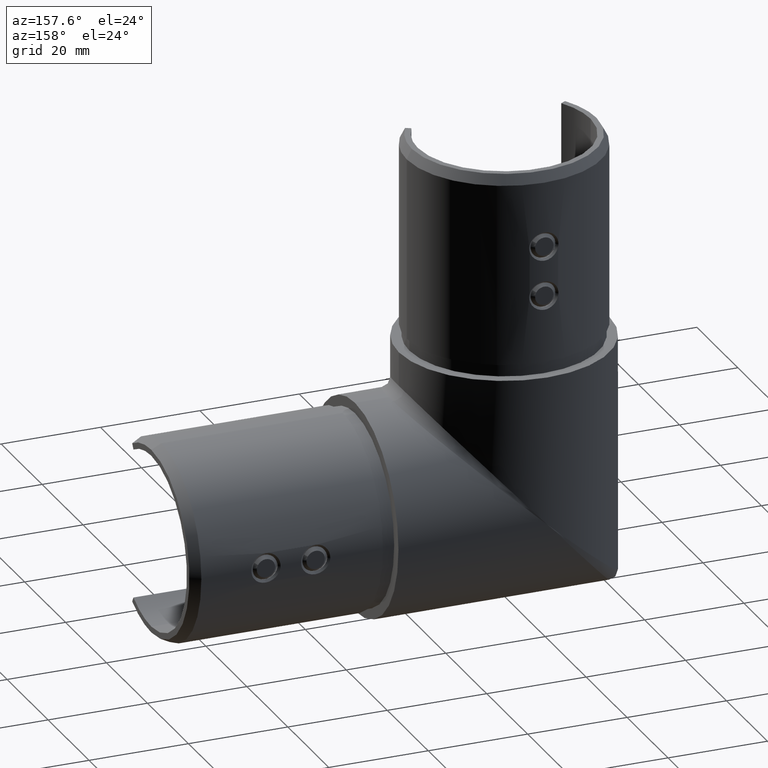
[diagram: clean part render]
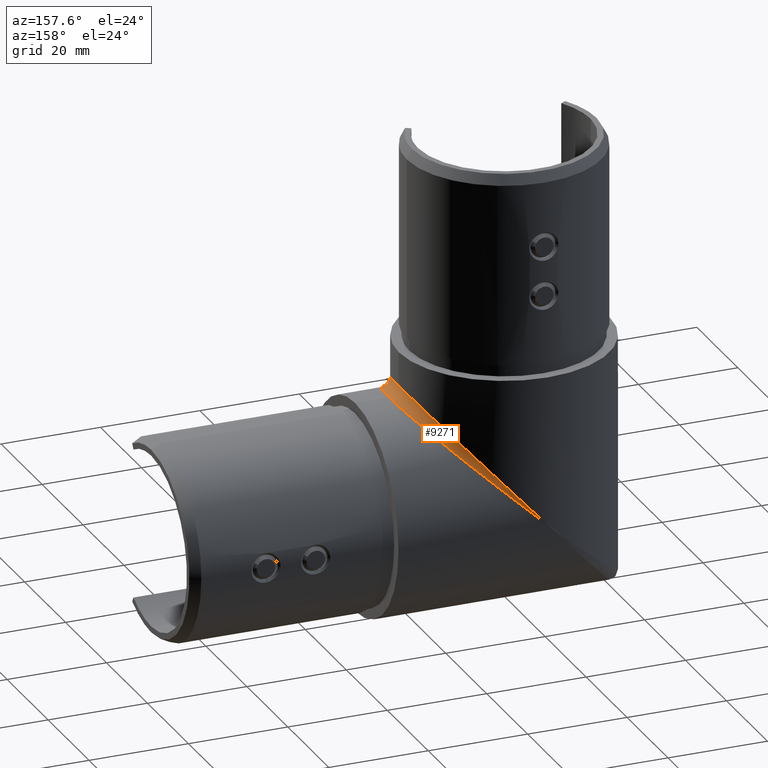
[diagram: same view with one face highlighted and labeled with its STEP entity id]
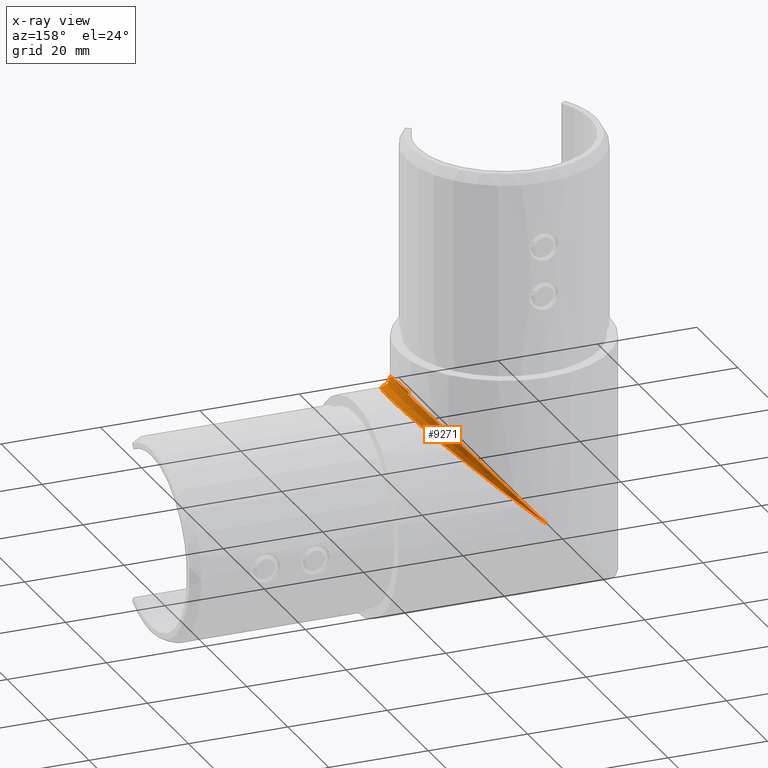
[diagram: x-ray of the same camera — body ghosted, the highlighted face saturated]
A machine part, auxiliary view. The second image highlights one B-rep face of the part: STEP entity #9271.
The next image is the same camera in x-ray: the body ghosted, the highlighted face saturated — about 2% of this face is hidden behind the body in this view.
In plain terms, the highlighted face is a freeform B-spline surface patch.
Its self-contained STEP definition (entity closure, byte-faithful):
#1090 = B_SPLINE_CURVE_WITH_KNOTS ( 'NONE', 3,
 ( #8121, #19038, #1847, #12596 ),
 .UNSPECIFIED., .F., .F.,
 ( 4, 4 ),
 ( 0.0000000000000000000, 0.001148280017814643900 ),
 .UNSPECIFIED. ) ;
#1227 = CARTESIAN_POINT ( 'NONE',  ( 17.51617754742680700, -12.02124343862689500, 17.51617754743204700 ) ) ;
#1295 = CARTESIAN_POINT ( 'NONE',  ( 21.12950048280429300, -2.070315881782744100, 23.12284958495651600 ) ) ;
#1432 = CARTESIAN_POINT ( 'NONE',  ( 23.23244799576600900, 0.2095884880941023800, 21.22965075475448100 ) ) ;
#1492 = CARTESIAN_POINT ( 'NONE',  ( 14.35071431729493200, -16.69658405602340800, 13.11358377270019700 ) ) ;
#1805 = VERTEX_POINT ( 'NONE', #17069 ) ;
#1807 = CARTESIAN_POINT ( 'NONE',  ( 12.74488384039687700, -17.47684181996279000, 11.99999999999999800 ) ) ;
#1847 = CARTESIAN_POINT ( 'NONE',  ( 12.00000000000000000, -17.47684181996274700, 12.74383663301167100 ) ) ;
#2256 = CARTESIAN_POINT ( 'NONE',  ( -4.261770861032789000E-015, 21.20000000000000300, -3.894376821288583500E-015 ) ) ;
#2298 = CARTESIAN_POINT ( 'NONE',  ( 2.282291699480177600, 21.20000000000000300, 2.497602237166986600 ) ) ;
#2670 = CARTESIAN_POINT ( 'NONE',  ( 17.62434800115397600, 13.83368088747022600, 16.10500765622567000 ) ) ;
#2749 = CARTESIAN_POINT ( 'NONE',  ( 17.73444640629554000, -11.67182115891006500, 19.40750738802206900 ) ) ;
#2790 = CARTESIAN_POINT ( 'NONE',  ( 17.87842104508794000, -13.44058325175394800, 19.56506453990755600 ) ) ;
#2816 = CARTESIAN_POINT ( 'NONE',  ( 22.64656377132545000, 4.742260090374634800, 20.69427379103901300 ) ) ;
#2858 = B_SPLINE_CURVE_WITH_KNOTS ( 'NONE', 3,
 ( #3108, #1807, #12758, #6258 ),
 .UNSPECIFIED., .F., .F.,
 ( 4, 4 ),
 ( 0.0000000000000000000, 0.001148417064566671300 ),
 .UNSPECIFIED. ) ;
#2887 = CARTESIAN_POINT ( 'NONE',  ( 13.11358377270153900, -16.69658405602223200, 14.35071431729629100 ) ) ;
#2926 = CARTESIAN_POINT ( 'NONE',  ( 12.00000000000000000, -17.47684181996278600, 13.13207547169811700 ) ) ;
#2947 = CARTESIAN_POINT ( 'NONE',  ( 18.68958751055159300, 10.07180803970899200, 20.45275614362367400 ) ) ;
#3004 = CARTESIAN_POINT ( 'NONE',  ( 20.97149788607050900, 3.287059136086488000, 20.97149788606617100 ) ) ;
#3099 = CARTESIAN_POINT ( 'NONE',  ( 23.19999999999999900, 2.596251214192388800E-015, 21.20000000000000300 ) ) ;
#3108 = CARTESIAN_POINT ( 'NONE',  ( 13.13207547169811600, -17.47684181996278600, 11.99999999999999600 ) ) ;
#3114 = CARTESIAN_POINT ( 'NONE',  ( 23.20000000000000300, 12.41867247769038600, 21.19999999999999900 ) ) ;
#3385 = CARTESIAN_POINT ( 'NONE',  ( 21.20000000000000300, 0.0000000000000000000, 23.20000000000001400 ) ) ;
#3642 = CARTESIAN_POINT ( 'NONE',  ( 12.41867247769038200, 21.19999999999999900, 13.59024535294419400 ) ) ;
#3771 = VERTEX_POINT ( 'NONE', #18510 ) ;
#4205 =( BOUNDED_SURFACE ( )  B_SPLINE_SURFACE ( 3, 2, ( 
 ( #2256, #4425, #16122 ),
 ( #15252, #10091, #2298 ),
 ( #19837, #8906, #19099 ),
 ( #12927, #19233, #7200 ),
 ( #8907, #14033, #16748 ),
 ( #17756, #19359, #13114 ),
 ( #8043, #9697, #5041 ),
 ( #17446, #8045, #16200 ),
 ( #14719, #15771, #7751 ),
 ( #2670, #7453, #18211 ),
 ( #15137, #13284, #14797 ),
 ( #11165, #16840, #20141 ),
 ( #12312, #13895, #2947 ),
 ( #4384, #5879, #6082 ),
 ( #4309, #15333, #9228 ),
 ( #2816, #7642, #18613 ),
 ( #20208, #3004, #10798 ),
 ( #15523, #15456, #16905 ),
 ( #1432, #15268, #17031 ),
 ( #12380, #7461, #1295 ),
 ( #13956, #7704, #5947 ),
 ( #4567, #9029, #12246 ),
 ( #18414, #9288, #6143 ),
 ( #7577, #10611, #17099 ),
 ( #4502, #18677, #20019 ),
 ( #20274, #12184, #2749 ),
 ( #7523, #1227, #13770 ),
 ( #18485, #9094, #4442 ),
 ( #18553, #10860, #20084 ),
 ( #1492, #10682, #2887 ),
 ( #13839, #10735, #13700 ),
 ( #15398, #6017, #16968 ) ),
 .UNSPECIFIED., .F., .F., .T. ) 
 B_SPLINE_SURFACE_WITH_KNOTS ( ( 4, 2, 2, 2, 2, 2, 2, 2, 2, 2, 2, 2, 2, 2, 2, 4 ),
 ( 3, 3 ),
 ( 4.712388980384689700, 5.035328081472264300, 5.196797632016052000, 5.358267182559838900, 5.519736733103626700, 5.681206283647414400, 5.842675834191201300, 6.004145384734989000, 6.165614935278776800, 6.327084485822563700, 6.488554036366351400, 6.650023586910139200, 6.811493137453926000, 6.972962687997713800, 7.134432238541501500, 7.295901789085288400 ),
 ( 0.0000000000000000000, 1.000000000000000000 ),
 .UNSPECIFIED. ) 
 GEOMETRIC_REPRESENTATION_ITEM ( )  RATIONAL_B_SPLINE_SURFACE ( (
 ( 1.000000000000000000, 1.000000000000000000, 1.000000000000000000),
 ( 1.000000000000000000, 1.000072010740913100, 1.000000000000000000),
 ( 1.000000000000000000, 0.9911182247621054300, 1.000000000000000000),
 ( 1.000000000000000000, 0.9661852087506736000, 1.000000000000000000),
 ( 1.000000000000000000, 0.9559746956700891900, 1.000000000000000000),
 ( 1.000000000000000000, 0.9324835975448552100, 1.000000000000000000),
 ( 1.000000000000000000, 0.9192024831362256600, 1.000000000000000000),
 ( 1.000000000000000000, 0.8906132073651018600, 1.000000000000000000),
 ( 1.000000000000000000, 0.8753050428358567500, 1.000000000000000000),
 ( 1.000000000000000000, 0.8440305613904325300, 1.000000000000000000),
 ( 1.000000000000000000, 0.8280661255861100400, 1.000000000000000000),
 ( 1.000000000000000000, 0.7971520532528172400, 1.000000000000000000),
 ( 1.000000000000000000, 0.7822085571078862800, 1.000000000000000000),
 ( 1.000000000000000000, 0.7552030753792203800, 1.000000000000000000),
 ( 1.000000000000000000, 0.7431535977148402400, 1.000000000000000000),
 ( 1.000000000000000000, 0.7237228427644169000, 1.000000000000000000),
 ( 1.000000000000000000, 0.7163580511837230900, 1.000000000000000000),
 ( 1.000000000000000000, 0.7075515103778218200, 1.000000000000000000),
 ( 1.000000000000000000, 0.7061203650306597800, 1.000000000000000000),
 ( 1.000000000000000000, 0.7094543594188130700, 1.000000000000000000),
 ( 1.000000000000000000, 0.7142152078109794700, 1.000000000000000000),
 ( 1.000000000000000000, 0.7291050561391768700, 1.000000000000000000),
 ( 1.000000000000000000, 0.7392187289664046100, 1.000000000000000000),
 ( 1.000000000000000000, 0.7632067814288314700, 1.000000000000000000),
 ( 1.000000000000000000, 0.7770660739100668800, 1.000000000000000000),
 ( 1.000000000000000000, 0.8066568742119812900, 1.000000000000000000),
 ( 1.000000000000000000, 0.8223794563346977800, 1.000000000000000000),
 ( 1.000000000000000000, 0.8539027480253704700, 1.000000000000000000),
 ( 1.000000000000000000, 0.8696999726028042900, 1.000000000000000000),
 ( 1.000000000000000000, 0.8998528429336456500, 1.000000000000000000),
 ( 1.000000000000000000, 0.9142129684335507100, 1.000000000000000000),
 ( 1.000000000000000000, 0.9272453680113736900, 1.000000000000000000) ) ) 
 REPRESENTATION_ITEM ( '' )  SURFACE ( )  );
#4243 =( BOUNDED_CURVE ( )  B_SPLINE_CURVE ( 3, ( #12167, #9080, #4369, #15256 ),
 .UNSPECIFIED., .F., .F. ) 
 B_SPLINE_CURVE_WITH_KNOTS ( ( 4, 4 ),
 ( 0.0000000000000000000, 0.9691048077543631400 ),
 .UNSPECIFIED. ) 
 CURVE ( )  GEOMETRIC_REPRESENTATION_ITEM ( )  RATIONAL_B_SPLINE_CURVE ( ( 1.000000000000000000, 0.9232556890245163800, 0.9232556890245163800, 1.000000000000000000 ) ) 
 REPRESENTATION_ITEM ( '' )  );
#4309 = CARTESIAN_POINT ( 'NONE',  ( 21.95869899313775900, 6.936092053620451600, 20.06570770062565100 ) ) ;
#4358 =( BOUNDED_CURVE ( )  B_SPLINE_CURVE ( 3, ( #2926, #2790, #18528, #9136 ),
 .UNSPECIFIED., .F., .T. ) 
 B_SPLINE_CURVE_WITH_KNOTS ( ( 4, 4 ),
 ( 5.314080499425223500, 6.283185307179586200 ),
 .UNSPECIFIED. ) 
 CURVE ( )  GEOMETRIC_REPRESENTATION_ITEM ( )  RATIONAL_B_SPLINE_CURVE ( ( 1.000000000000000000, 0.9232556890245163800, 0.9232556890245163800, 1.000000000000000000 ) ) 
 REPRESENTATION_ITEM ( '' )  );
#4369 = CARTESIAN_POINT ( 'NONE',  ( 19.56506453990755600, -13.44058325175394900, 17.87842104508794300 ) ) ;
#4384 = CARTESIAN_POINT ( 'NONE',  ( 21.51764656607554500, 8.007567067440087200, 19.66267703451795500 ) ) ;
#4425 = CARTESIAN_POINT ( 'NONE',  ( -4.078073841160686300E-015, 21.20000000000000300, -4.078073841160686300E-015 ) ) ;
#4442 = CARTESIAN_POINT ( 'NONE',  ( 15.62729349644612100, -14.37114109872116600, 17.10156646780677600 ) ) ;
#4501 = CARTESIAN_POINT ( 'NONE',  ( -3.894376821288583500E-015, 21.20000000000000600, -3.894376821288583500E-015 ) ) ;
#4502 = CARTESIAN_POINT ( 'NONE',  ( 20.66637614432221800, -9.700857170816792800, 18.88479199395010300 ) ) ;
#4567 = CARTESIAN_POINT ( 'NONE',  ( 22.45782722856860000, -5.440350144443984300, 20.52180763990027400 ) ) ;
#5041 = CARTESIAN_POINT ( 'NONE',  ( 11.84906834499791200, 17.61651435043469100, 12.96690498131848200 ) ) ;
#5279 = ORIENTED_EDGE ( 'NONE', *, *, #17191, .F. ) ;
#5879 = CARTESIAN_POINT ( 'NONE',  ( 19.90214272145811200, 7.415719023556735400, 19.90214272146051400 ) ) ;
#5947 = CARTESIAN_POINT ( 'NONE',  ( 20.98719268887431600, -3.206203602904822000, 22.96711652744899400 ) ) ;
#6017 = CARTESIAN_POINT ( 'NONE',  ( 11.66983366698567600, -17.70672064115054300, 11.66983366698567800 ) ) ;
#6082 = CARTESIAN_POINT ( 'NONE',  ( 19.66267703451837800, 8.007567067439177700, 21.51764656607554800 ) ) ;
#6143 = CARTESIAN_POINT ( 'NONE',  ( 20.19873565049639600, -6.538583686445311300, 22.10427674959905500 ) ) ;
#6258 = CARTESIAN_POINT ( 'NONE',  ( 12.00000000000000000, -17.66907117696080900, 11.99999999999999600 ) ) ;
#6617 = CARTESIAN_POINT ( 'NONE',  ( -3.894376821288583500E-015, 21.20000000000000600, -3.894376821288583500E-015 ) ) ;
#7200 = CARTESIAN_POINT ( 'NONE',  ( 7.809994912617422200, 19.74198515774084200, 8.546786885505529300 ) ) ;
#7453 = CARTESIAN_POINT ( 'NONE',  ( 16.57525732915306100, 13.28872988263180200, 16.57525732915306400 ) ) ;
#7461 = CARTESIAN_POINT ( 'NONE',  ( 21.14282143007824600, -1.874150454866784200, 21.14282143007609000 ) ) ;
#7523 = CARTESIAN_POINT ( 'NONE',  ( 18.69082287118923700, -12.61075492651513700, 17.07954503746507100 ) ) ;
#7577 = CARTESIAN_POINT ( 'NONE',  ( 21.20854614003712200, -8.668849251224731500, 19.38022319692995800 ) ) ;
#7580 =( BOUNDED_CURVE ( )  B_SPLINE_CURVE ( 3, ( #3385, #15895, #3642, #4501 ),
 .UNSPECIFIED., .F., .F. ) 
 B_SPLINE_CURVE_WITH_KNOTS ( ( 4, 4 ),
 ( 0.0000000000000000000, 1.570796326794896800 ),
 .UNSPECIFIED. ) 
 CURVE ( )  GEOMETRIC_REPRESENTATION_ITEM ( )  RATIONAL_B_SPLINE_CURVE ( ( 1.000000000000000000, 0.8047378541243649400, 0.8047378541243649400, 1.000000000000000000 ) ) 
 REPRESENTATION_ITEM ( '' )  );
#7642 = CARTESIAN_POINT ( 'NONE',  ( 20.78820450269664000, 4.316944643470651300, 20.78820450269664700 ) ) ;
#7704 = CARTESIAN_POINT ( 'NONE',  ( 21.02948868621127000, -2.900924379609964200, 21.02948868621128400 ) ) ;
#7751 = CARTESIAN_POINT ( 'NONE',  ( 14.52712287278249000, 15.48239967002939100, 15.89760616266627500 ) ) ;
#8043 = CARTESIAN_POINT ( 'NONE',  ( 12.96690498131986600, 17.61651435043535600, 11.84906834499703100 ) ) ;
#8045 = CARTESIAN_POINT ( 'NONE',  ( 14.16528335407846500, 15.83053719807588400, 14.16528335408269300 ) ) ;
#8121 = CARTESIAN_POINT ( 'NONE',  ( 12.00000000000000000, -17.66907117696080900, 11.99999999999999600 ) ) ;
#8658 = EDGE_CURVE ( 'NONE', #16813, #1805, #2858, .T. ) ;
#8707 = FACE_OUTER_BOUND ( 'NONE', #19710, .T. ) ;
#8906 = CARTESIAN_POINT ( 'NONE',  ( 4.816777261290459600, 20.77904914901721900, 4.816777261294864900 ) ) ;
#8907 = CARTESIAN_POINT ( 'NONE',  ( 9.698859167874138300, 19.29232101045334200, 8.862750618919649900 ) ) ;
#9029 = CARTESIAN_POINT ( 'NONE',  ( 20.63988008735843500, -4.973670261181967000, 20.63988008735844900 ) ) ;
#9080 = CARTESIAN_POINT ( 'NONE',  ( 23.20000000000000300, -7.130723470502281300, 21.20000000000000300 ) ) ;
#9094 = CARTESIAN_POINT ( 'NONE',  ( 16.10653822709103300, -13.84822340107264800, 16.10653822708599500 ) ) ;
#9136 = CARTESIAN_POINT ( 'NONE',  ( 21.20000000000000300, 0.0000000000000000000, 23.20000000000001400 ) ) ;
#9228 = CARTESIAN_POINT ( 'NONE',  ( 20.06570770062564800, 6.936092053620451600, 21.95869899313776200 ) ) ;
#9271 = ADVANCED_FACE ( 'NONE', ( #8707 ), #4205, .F. ) ;
#9288 = CARTESIAN_POINT ( 'NONE',  ( 20.36896090554962800, -6.005078682387317500, 20.36896090554729400 ) ) ;
#9697 = CARTESIAN_POINT ( 'NONE',  ( 12.32189942947149100, 17.29907907665647600, 12.32189942946740400 ) ) ;
#10091 = CARTESIAN_POINT ( 'NONE',  ( 2.389783242200137700, 21.19999999999999900, 2.389783242200138200 ) ) ;
#10611 = CARTESIAN_POINT ( 'NONE',  ( 19.64710471912840000, -8.061893751993581600, 19.64710471913067400 ) ) ;
#10682 = CARTESIAN_POINT ( 'NONE',  ( 13.60362669743168200, -16.31172697052322800, 13.60362669743301300 ) ) ;
#10735 = CARTESIAN_POINT ( 'NONE',  ( 12.67277768406025200, -17.04698041676212100, 12.67277768406746000 ) ) ;
#10798 = CARTESIAN_POINT ( 'NONE',  ( 20.91980210336326000, 3.619927963277213200, 22.89336833952782500 ) ) ;
#10860 = CARTESIAN_POINT ( 'NONE',  ( 15.32162085486518800, -14.71564723799569800, 15.32162085486380800 ) ) ;
#11165 = CARTESIAN_POINT ( 'NONE',  ( 19.82893019712893000, 11.06455064194704000, 18.11953966289365400 ) ) ;
#11200 = CARTESIAN_POINT ( 'NONE',  ( 13.13207547169811600, -17.47684181996278600, 11.99999999999999600 ) ) ;
#11400 = VERTEX_POINT ( 'NONE', #6617 ) ;
#11642 =( BOUNDED_CURVE ( )  B_SPLINE_CURVE ( 3, ( #15504, #18725, #3114, #17078 ),
 .UNSPECIFIED., .F., .F. ) 
 B_SPLINE_CURVE_WITH_KNOTS ( ( 4, 4 ),
 ( 4.712388980384689700, 6.283185307179586200 ),
 .UNSPECIFIED. ) 
 CURVE ( )  GEOMETRIC_REPRESENTATION_ITEM ( )  RATIONAL_B_SPLINE_CURVE ( ( 1.000000000000000000, 0.8047378541243649400, 0.8047378541243649400, 1.000000000000000000 ) ) 
 REPRESENTATION_ITEM ( '' )  );
#11879 = EDGE_CURVE ( 'NONE', #15022, #11400, #7580, .T. ) ;
#12167 = CARTESIAN_POINT ( 'NONE',  ( 23.19999999999999900, 2.596251214192388800E-015, 21.20000000000000300 ) ) ;
#12184 = CARTESIAN_POINT ( 'NONE',  ( 18.13469987604693000, -11.05881388886376000, 18.13469987604931800 ) ) ;
#12246 = CARTESIAN_POINT ( 'NONE',  ( 20.52180763990037700, -5.440350144443455000, 22.45782722856860400 ) ) ;
#12312 = CARTESIAN_POINT ( 'NONE',  ( 20.45275614362367000, 10.07180803970808500, 18.68958751055202700 ) ) ;
#12370 = ORIENTED_EDGE ( 'NONE', *, *, #17708, .F. ) ;
#12380 = CARTESIAN_POINT ( 'NONE',  ( 23.12284958495867900, -2.070315881782839100, 21.12950048280429300 ) ) ;
#12596 = CARTESIAN_POINT ( 'NONE',  ( 12.00000000000000000, -17.47684181996278600, 13.13207547169811700 ) ) ;
#12640 = ORIENTED_EDGE ( 'NONE', *, *, #15749, .F. ) ;
#12758 = CARTESIAN_POINT ( 'NONE',  ( 12.36741542176380700, -17.55041413196615400, 11.99999999999999600 ) ) ;
#12927 = CARTESIAN_POINT ( 'NONE',  ( 8.546786885505527600, 19.74198515774084200, 7.809994912617424000 ) ) ;
#13092 = VERTEX_POINT ( 'NONE', #3099 ) ;
#13114 = CARTESIAN_POINT ( 'NONE',  ( 10.88229876063792600, 18.22957959437788100, 11.90893071918887000 ) ) ;
#13237 = CARTESIAN_POINT ( 'NONE',  ( 21.20000000000000300, 0.0000000000000000000, 23.20000000000001400 ) ) ;
#13284 = CARTESIAN_POINT ( 'NONE',  ( 17.27162823498649400, 12.36461836699057800, 17.27162823498405700 ) ) ;
#13700 = CARTESIAN_POINT ( 'NONE',  ( 12.19458433321700000, -17.37913042565587700, 13.34501681748133900 ) ) ;
#13770 = CARTESIAN_POINT ( 'NONE',  ( 17.07954503746402600, -12.61075492651639800, 18.69082287118924100 ) ) ;
#13839 = CARTESIAN_POINT ( 'NONE',  ( 13.34501681748246700, -17.37913042565523400, 12.19458433321803500 ) ) ;
#13895 = CARTESIAN_POINT ( 'NONE',  ( 19.02221254432964100, 9.447169312216651300, 19.02221254432732100 ) ) ;
#13956 = CARTESIAN_POINT ( 'NONE',  ( 22.96711652744899000, -3.206203602904291700, 20.98719268887443000 ) ) ;
#14033 = CARTESIAN_POINT ( 'NONE',  ( 9.255717279346367100, 19.11329879073179700, 9.255717279349225300 ) ) ;
#14719 = CARTESIAN_POINT ( 'NONE',  ( 15.89760616266627100, 15.48239967002939100, 14.52712287278249400 ) ) ;
#14797 = CARTESIAN_POINT ( 'NONE',  ( 16.82724242471315900, 12.94549770705310000, 18.41471812515440800 ) ) ;
#15022 = VERTEX_POINT ( 'NONE', #13237 ) ;
#15137 = CARTESIAN_POINT ( 'NONE',  ( 18.41471812515689500, 12.94549770705426400, 16.82724242471236700 ) ) ;
#15252 = CARTESIAN_POINT ( 'NONE',  ( 2.497602237166985700, 21.20000000000000300, 2.282291699480177200 ) ) ;
#15256 = CARTESIAN_POINT ( 'NONE',  ( 13.13207547169811600, -17.47684181996278600, 11.99999999999999600 ) ) ;
#15268 = CARTESIAN_POINT ( 'NONE',  ( 21.22420286457974100, 0.1931575063388355500, 21.22420286458192300 ) ) ;
#15333 = CARTESIAN_POINT ( 'NONE',  ( 20.25005109382892200, 6.387621864327576800, 20.25005109382893000 ) ) ;
#15398 = CARTESIAN_POINT ( 'NONE',  ( 12.28575391601034300, -17.98339837737835700, 11.22663719911290100 ) ) ;
#15456 = CARTESIAN_POINT ( 'NONE',  ( 21.19106941995801200, 1.217184058602820000, 21.19106941996240000 ) ) ;
#15504 = CARTESIAN_POINT ( 'NONE',  ( -3.894376821288583500E-015, 21.20000000000000600, -3.894376821288583500E-015 ) ) ;
#15523 = CARTESIAN_POINT ( 'NONE',  ( 23.18631210901651200, 1.353579340779188100, 21.18749209961893200 ) ) ;
#15749 = EDGE_CURVE ( 'NONE', #13092, #16813, #4243, .T. ) ;
#15771 = CARTESIAN_POINT ( 'NONE',  ( 15.01983994205936300, 15.01923988027561700, 15.01983994205937000 ) ) ;
#15895 = CARTESIAN_POINT ( 'NONE',  ( 21.19999999999999900, 12.41867247769038600, 23.20000000000001000 ) ) ;
#16122 = CARTESIAN_POINT ( 'NONE',  ( -3.894376821288582800E-015, 21.20000000000000300, -4.261770861032789800E-015 ) ) ;
#16200 = CARTESIAN_POINT ( 'NONE',  ( 13.67149071132564200, 16.24291661721009200, 14.96125398597899900 ) ) ;
#16748 = CARTESIAN_POINT ( 'NONE',  ( 8.862750618919649900, 19.29232101045334200, 9.698859167874140000 ) ) ;
#16813 = VERTEX_POINT ( 'NONE', #11200 ) ;
#16840 = CARTESIAN_POINT ( 'NONE',  ( 18.49900217614845100, 10.44375667391284800, 18.49900217615099200 ) ) ;
#16905 = CARTESIAN_POINT ( 'NONE',  ( 21.18749209961890000, 1.353579340779442100, 23.18631210901869700 ) ) ;
#16968 = CARTESIAN_POINT ( 'NONE',  ( 11.22663719911289900, -17.98339837737835700, 12.28575391601034500 ) ) ;
#17031 = CARTESIAN_POINT ( 'NONE',  ( 21.22965075475447000, 0.2095884880940075100, 23.23244799576818000 ) ) ;
#17069 = CARTESIAN_POINT ( 'NONE',  ( 12.00000000000000000, -17.66907117696080900, 11.99999999999999600 ) ) ;
#17078 = CARTESIAN_POINT ( 'NONE',  ( 23.19999999999999900, 2.596251214192388800E-015, 21.20000000000000300 ) ) ;
#17099 = CARTESIAN_POINT ( 'NONE',  ( 19.38022319692976200, -8.668849251225232400, 21.20854614003712500 ) ) ;
#17191 = EDGE_CURVE ( 'NONE', #11400, #13092, #11642, .T. ) ;
#17446 = CARTESIAN_POINT ( 'NONE',  ( 14.96125398597761000, 16.24291661720942400, 13.67149071132652900 ) ) ;
#17708 = EDGE_CURVE ( 'NONE', #3771, #15022, #4358, .T. ) ;
#17756 = CARTESIAN_POINT ( 'NONE',  ( 11.90893071918886800, 18.22957959437787800, 10.88229876063792800 ) ) ;
#17806 = ORIENTED_EDGE ( 'NONE', *, *, #11879, .F. ) ;
#18211 = CARTESIAN_POINT ( 'NONE',  ( 16.10500765622567000, 13.83368088747022600, 17.62434800115397900 ) ) ;
#18393 = ORIENTED_EDGE ( 'NONE', *, *, #8658, .F. ) ;
#18414 = CARTESIAN_POINT ( 'NONE',  ( 22.10427674959905200, -6.538583686445812200, 20.19873565049620400 ) ) ;
#18485 = CARTESIAN_POINT ( 'NONE',  ( 17.10156646780677300, -14.37114109872242700, 15.62729349644508400 ) ) ;
#18510 = CARTESIAN_POINT ( 'NONE',  ( 12.00000000000000000, -17.47684181996278600, 13.13207547169811700 ) ) ;
#18528 = CARTESIAN_POINT ( 'NONE',  ( 21.20000000000000300, -7.130723470502275100, 23.20000000000000600 ) ) ;
#18553 = CARTESIAN_POINT ( 'NONE',  ( 16.22901256338421700, -15.19257358491576000, 14.82995975619627100 ) ) ;
#18613 = CARTESIAN_POINT ( 'NONE',  ( 20.69427379103900900, 4.742260090374634800, 22.64656377132545400 ) ) ;
#18677 = CARTESIAN_POINT ( 'NONE',  ( 19.20446703610698000, -9.077591562914197000, 19.20446703610451100 ) ) ;
#18725 = CARTESIAN_POINT ( 'NONE',  ( 13.59024535294419200, 21.19999999999999900, 12.41867247769038200 ) ) ;
#19038 = CARTESIAN_POINT ( 'NONE',  ( 12.00000000000000000, -17.55020742944303800, 12.36805546546887100 ) ) ;
#19099 = CARTESIAN_POINT ( 'NONE',  ( 4.563794330451937500, 20.82834067619437200, 4.994340965400898100 ) ) ;
#19117 = EDGE_CURVE ( 'NONE', #1805, #3771, #1090, .T. ) ;
#19233 = CARTESIAN_POINT ( 'NONE',  ( 8.162830162200560100, 19.60576571913777900, 8.162830162198304200 ) ) ;
#19359 = CARTESIAN_POINT ( 'NONE',  ( 11.33327377170940900, 17.96379712606543300, 11.33327377170648700 ) ) ;
#19710 = EDGE_LOOP ( 'NONE', ( #5279, #17806, #12370, #19729, #18393, #12640 ) ) ;
#19729 = ORIENTED_EDGE ( 'NONE', *, *, #19117, .F. ) ;
#19837 = CARTESIAN_POINT ( 'NONE',  ( 4.994340965400896300, 20.82834067619437200, 4.563794330451939300 ) ) ;
#20019 = CARTESIAN_POINT ( 'NONE',  ( 18.88479199395010300, -9.700857170816792800, 20.66637614432222100 ) ) ;
#20084 = CARTESIAN_POINT ( 'NONE',  ( 14.82995975619492600, -15.19257358491693600, 16.22901256338286300 ) ) ;
#20141 = CARTESIAN_POINT ( 'NONE',  ( 18.11953966289285100, 11.06455064194819800, 19.82893019713142000 ) ) ;
#20208 = CARTESIAN_POINT ( 'NONE',  ( 22.89336833953000600, 3.619927963277467200, 20.91980210336323500 ) ) ;
#20274 = CARTESIAN_POINT ( 'NONE',  ( 19.40750738802206500, -11.67182115891006500, 17.73444640629554300 ) ) ;